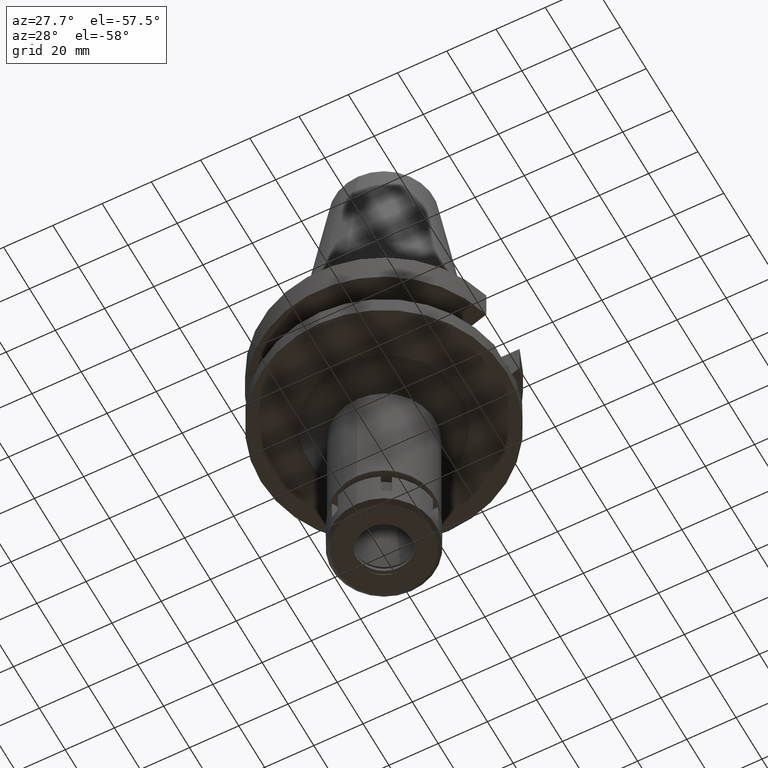
[diagram: clean part render]
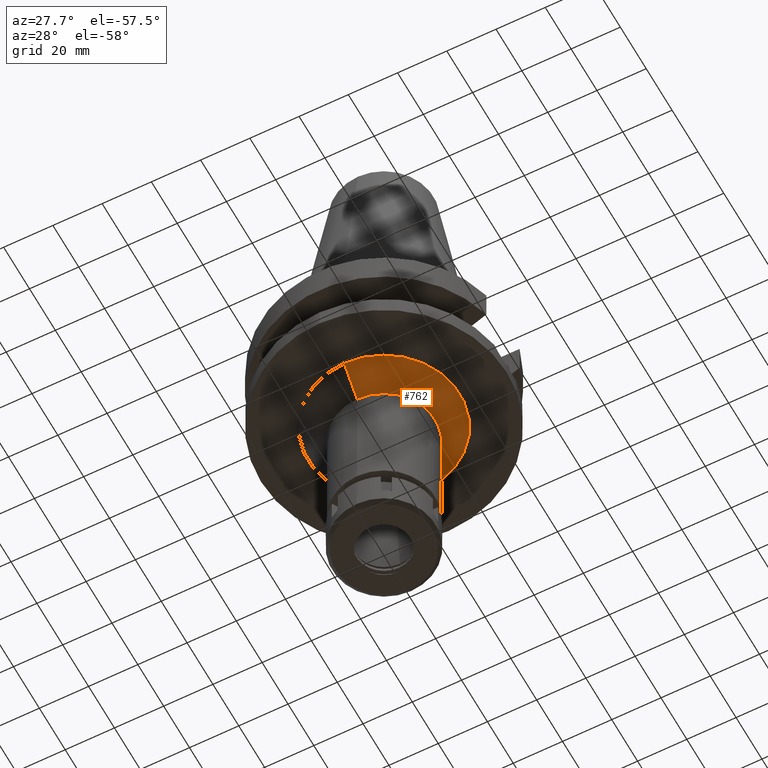
[diagram: same view with one face highlighted and labeled with its STEP entity id]
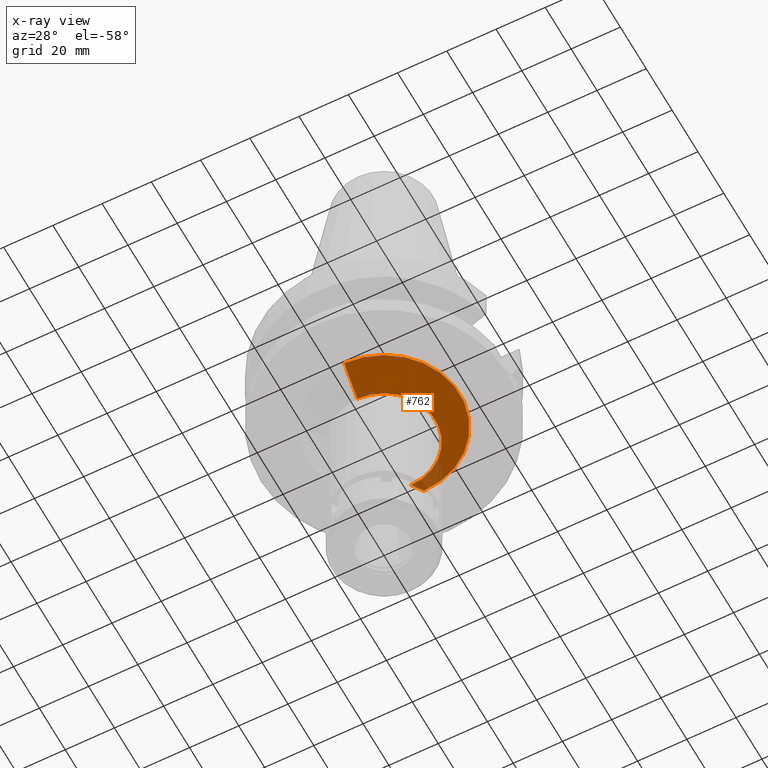
[diagram: x-ray of the same camera — body ghosted, the highlighted face saturated]
A machine part, auxiliary view. The second image highlights one B-rep face of the part: STEP entity #762.
The next image is the same camera in x-ray: the body ghosted, the highlighted face saturated — about 6% of this face is hidden behind the body in this view.
In plain terms, the highlighted conical surface has half-angle 45 deg.
Its self-contained STEP definition (entity closure, byte-faithful):
#12 = CIRCLE ( 'NONE', #2739, 20.75000000000000000 ) ;
#74 = VECTOR ( 'NONE', #1584, 1000.000000000000000 ) ;
#133 = CARTESIAN_POINT ( 'NONE',  ( 0.0000000000000000000, -30.75000000000000000, -38.00000000000000000 ) ) ;
#413 = DIRECTION ( 'NONE',  ( 0.0000000000000000000, 1.000000000000000000, 0.0000000000000000000 ) ) ;
#429 = VERTEX_POINT ( 'NONE', #717 ) ;
#454 = VERTEX_POINT ( 'NONE', #1214 ) ;
#457 = DIRECTION ( 'NONE',  ( 0.0000000000000000000, 1.000000000000000000, 0.0000000000000000000 ) ) ;
#553 = EDGE_CURVE ( 'NONE', #454, #3279, #12, .T. ) ;
#557 = CARTESIAN_POINT ( 'NONE',  ( 0.0000000000000000000, 30.75000000000000000, -38.00000000000000000 ) ) ;
#599 = ORIENTED_EDGE ( 'NONE', *, *, #771, .T. ) ;
#717 = CARTESIAN_POINT ( 'NONE',  ( 0.0000000000000000000, -30.75000000000000000, -38.00000000000000000 ) ) ;
#762 = ADVANCED_FACE ( 'NONE', ( #966 ), #965, .T. ) ;
#771 = EDGE_CURVE ( 'NONE', #429, #3279, #1540, .T. ) ;
#859 = CARTESIAN_POINT ( 'NONE',  ( 0.0000000000000000000, 0.0000000000000000000, -48.00000000000000000 ) ) ;
#862 = ORIENTED_EDGE ( 'NONE', *, *, #2194, .T. ) ;
#965 = CONICAL_SURFACE ( 'NONE', #3280, 25.75000000000000000, 0.7853981633972997312 ) ;
#966 = FACE_OUTER_BOUND ( 'NONE', #2373, .T. ) ;
#1048 = VECTOR ( 'NONE', #3624, 1000.000000000000114 ) ;
#1131 = LINE ( 'NONE', #557, #1048 ) ;
#1145 = ORIENTED_EDGE ( 'NONE', *, *, #3601, .F. ) ;
#1192 = CARTESIAN_POINT ( 'NONE',  ( 0.0000000000000000000, -20.75000000000000000, -48.00000000000000000 ) ) ;
#1214 = CARTESIAN_POINT ( 'NONE',  ( 0.0000000000000000000, 20.75000000000000000, -48.00000000000000000 ) ) ;
#1270 = VERTEX_POINT ( 'NONE', #2145 ) ;
#1417 = DIRECTION ( 'NONE',  ( 0.0000000000000000000, 0.0000000000000000000, -1.000000000000000000 ) ) ;
#1474 = DIRECTION ( 'NONE',  ( 0.0000000000000000000, 1.000000000000000000, 0.0000000000000000000 ) ) ;
#1540 = LINE ( 'NONE', #133, #74 ) ;
#1543 = CARTESIAN_POINT ( 'NONE',  ( 0.0000000000000000000, 0.0000000000000000000, -38.00000000000000000 ) ) ;
#1563 = AXIS2_PLACEMENT_3D ( 'NONE', #1543, #3262, #457 ) ;
#1584 = DIRECTION ( 'NONE',  ( 0.0000000000000000000, 0.7071067811865969777, -0.7071067811864980568 ) ) ;
#1853 = CIRCLE ( 'NONE', #1563, 30.75000000000000000 ) ;
#2090 = CARTESIAN_POINT ( 'NONE',  ( 0.0000000000000000000, 0.0000000000000000000, -43.00000000000000000 ) ) ;
#2145 = CARTESIAN_POINT ( 'NONE',  ( 0.0000000000000000000, 30.75000000000000000, -38.00000000000000000 ) ) ;
#2167 = ORIENTED_EDGE ( 'NONE', *, *, #553, .F. ) ;
#2194 = EDGE_CURVE ( 'NONE', #1270, #429, #1853, .T. ) ;
#2373 = EDGE_LOOP ( 'NONE', ( #862, #599, #2167, #1145 ) ) ;
#2739 = AXIS2_PLACEMENT_3D ( 'NONE', #859, #1417, #1474 ) ;
#3235 = DIRECTION ( 'NONE',  ( 0.0000000000000000000, 0.0000000000000000000, 1.000000000000000000 ) ) ;
#3262 = DIRECTION ( 'NONE',  ( 0.0000000000000000000, 0.0000000000000000000, -1.000000000000000000 ) ) ;
#3279 = VERTEX_POINT ( 'NONE', #1192 ) ;
#3280 = AXIS2_PLACEMENT_3D ( 'NONE', #2090, #3235, #413 ) ;
#3601 = EDGE_CURVE ( 'NONE', #1270, #454, #1131, .T. ) ;
#3624 = DIRECTION ( 'NONE',  ( 0.0000000000000000000, -0.7071067811865474617, -0.7071067811865474617 ) ) ;